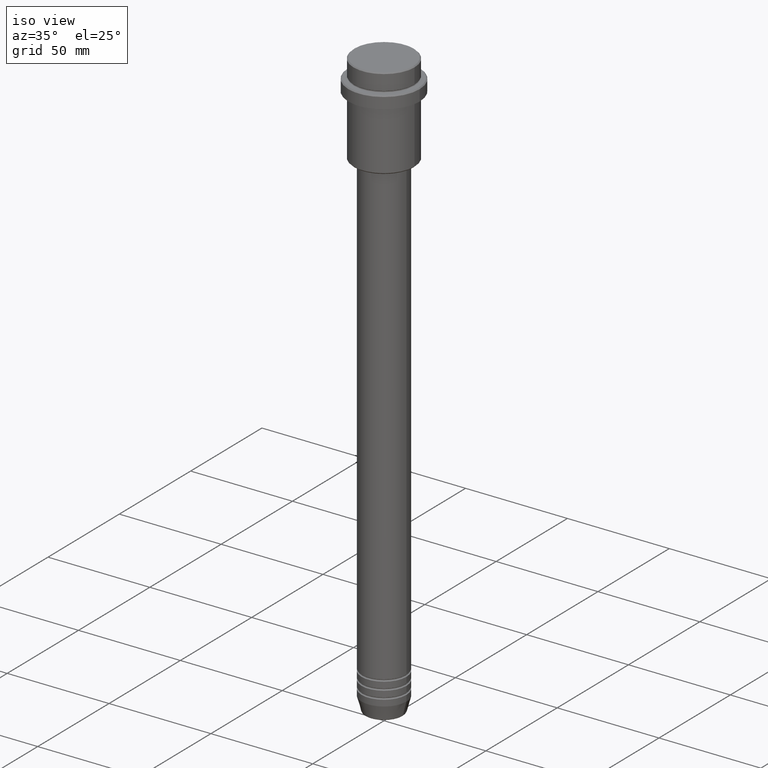
[diagram: clean part render]
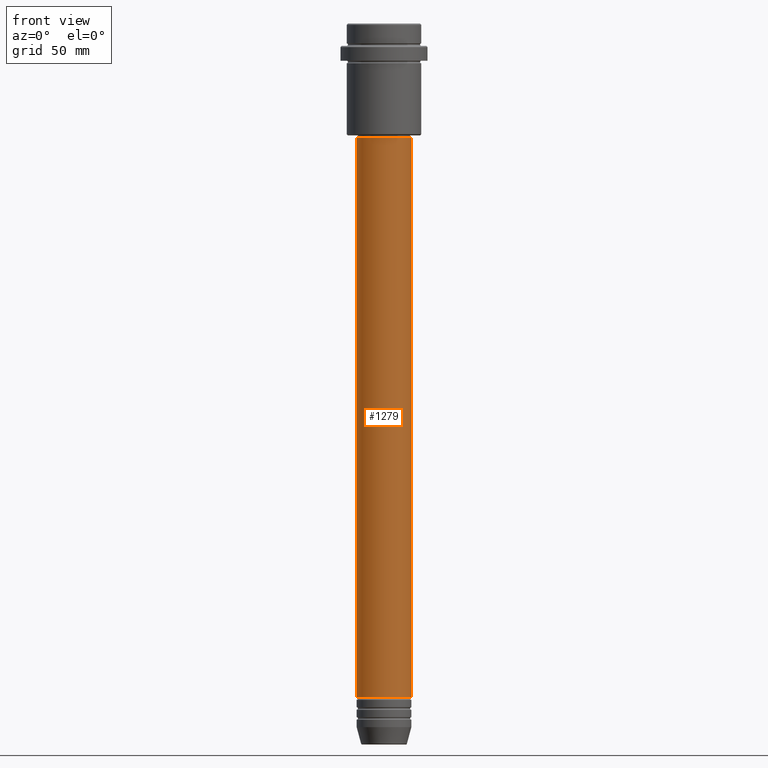
[diagram: tour spotlight — one face highlighted and labeled with its STEP entity id]
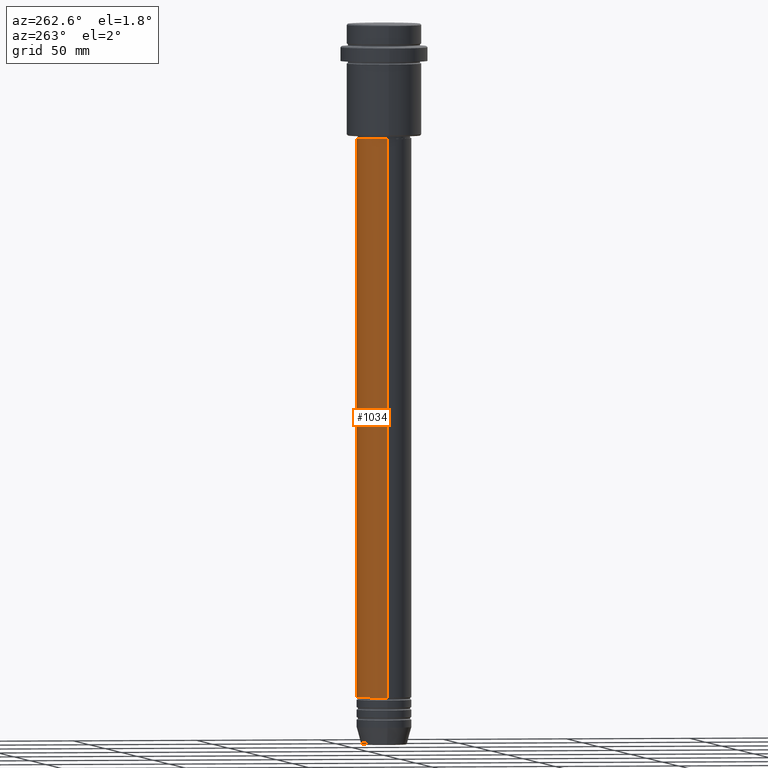
[diagram: tour spotlight — one face highlighted and labeled with its STEP entity id]
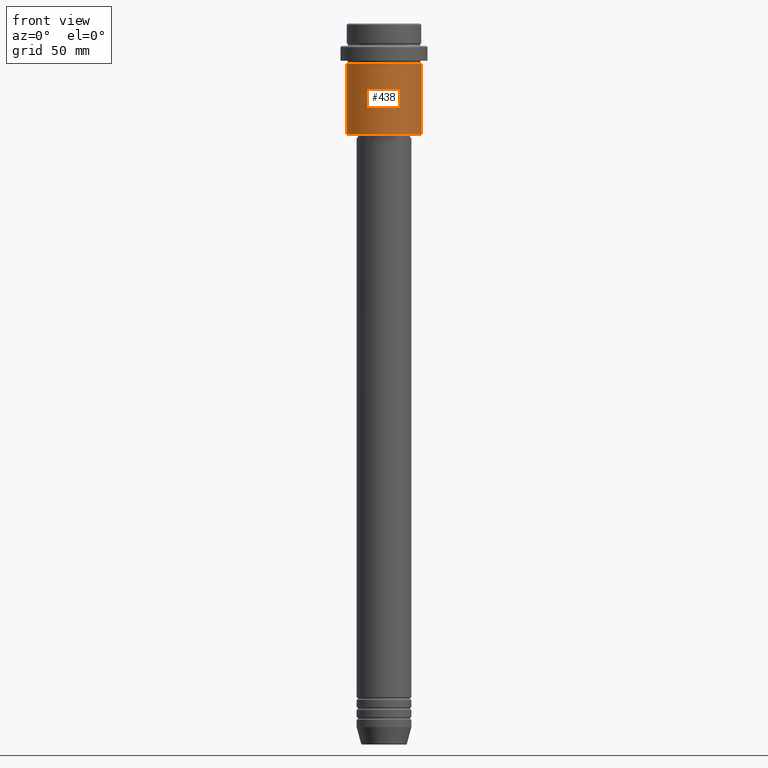
[diagram: tour spotlight — one face highlighted and labeled with its STEP entity id]
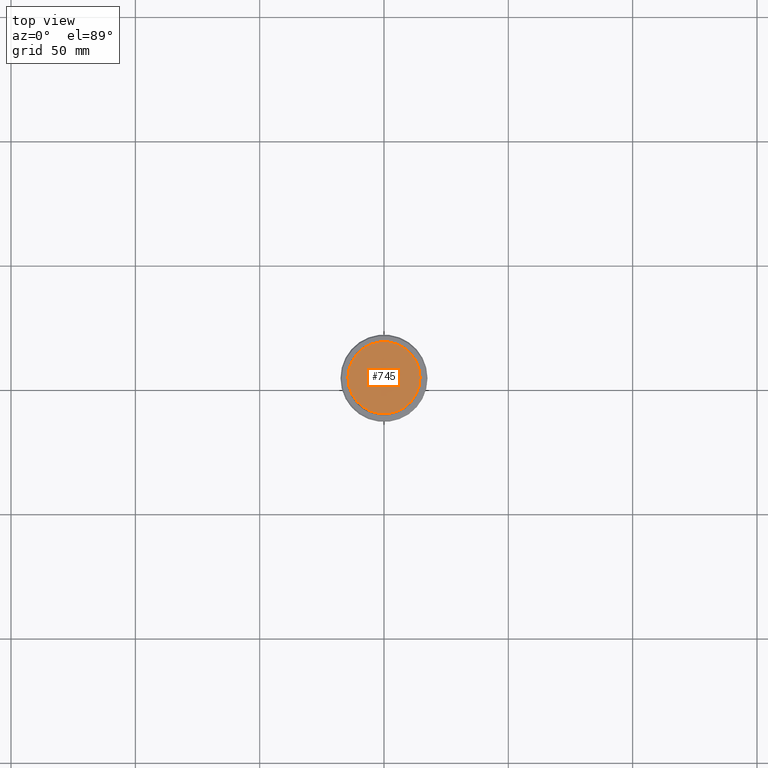
[diagram: tour spotlight — one face highlighted and labeled with its STEP entity id]
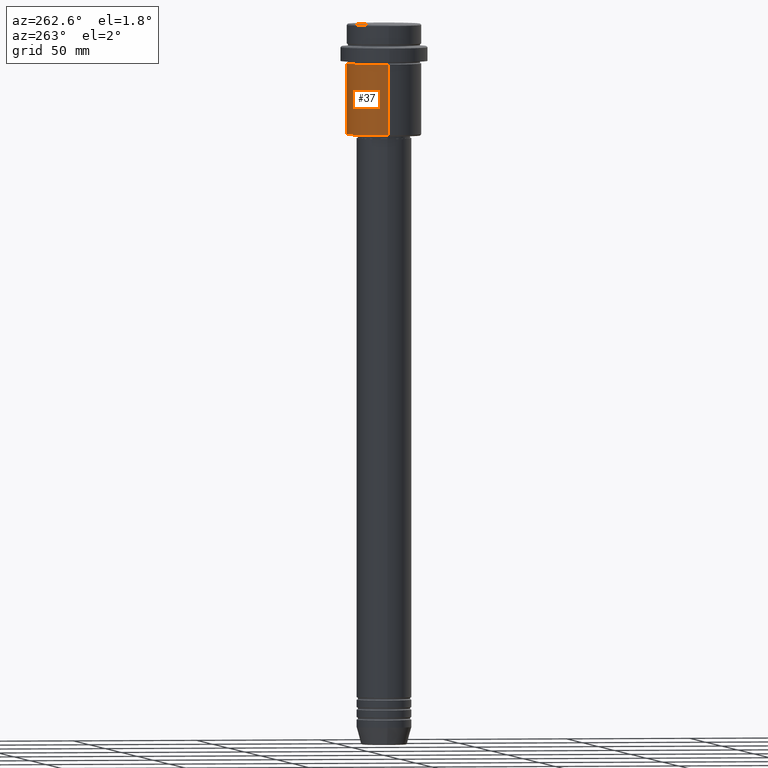
[diagram: tour spotlight — one face highlighted and labeled with its STEP entity id]
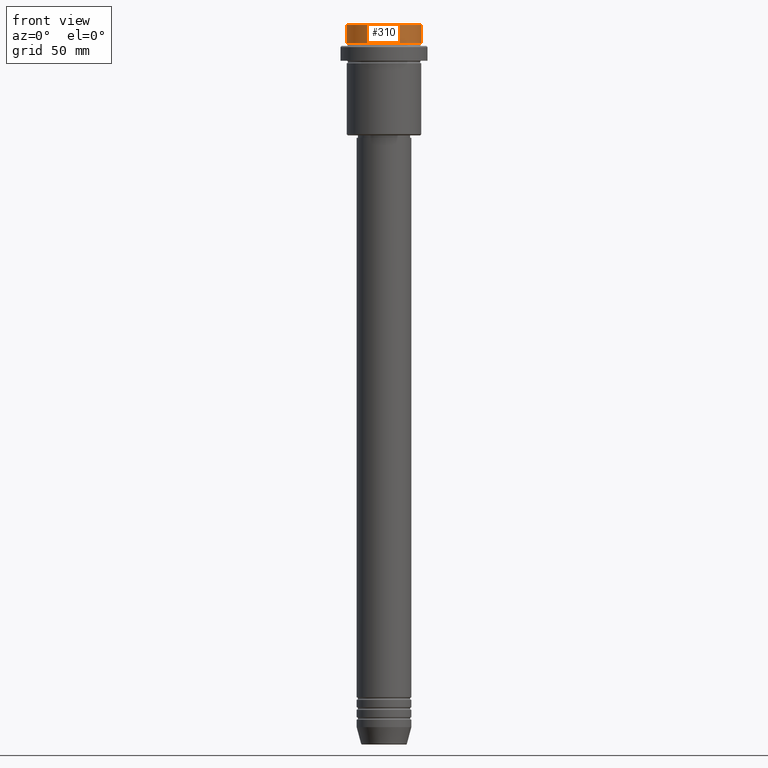
[diagram: tour spotlight — one face highlighted and labeled with its STEP entity id]
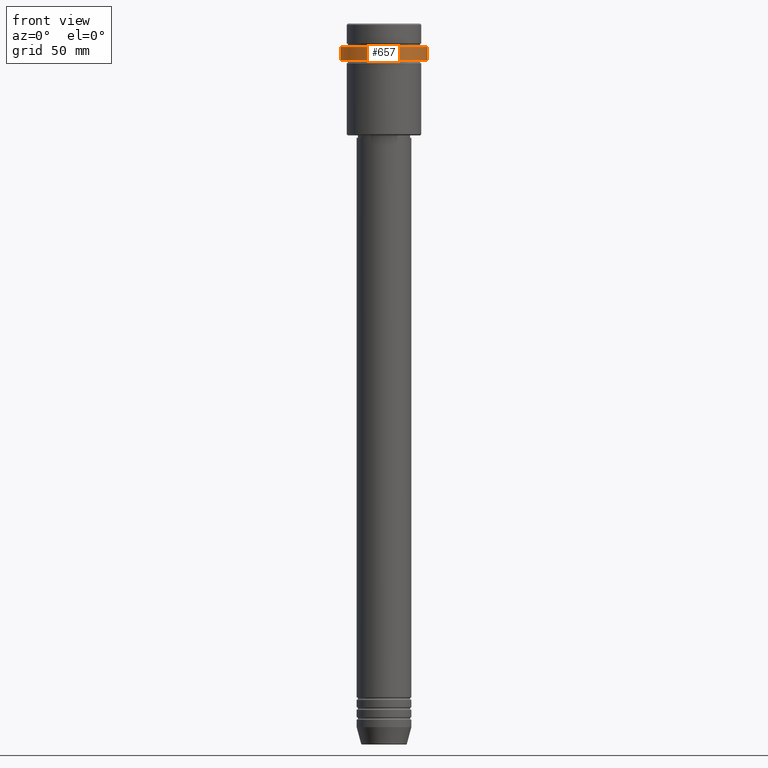
[diagram: tour spotlight — one face highlighted and labeled with its STEP entity id]
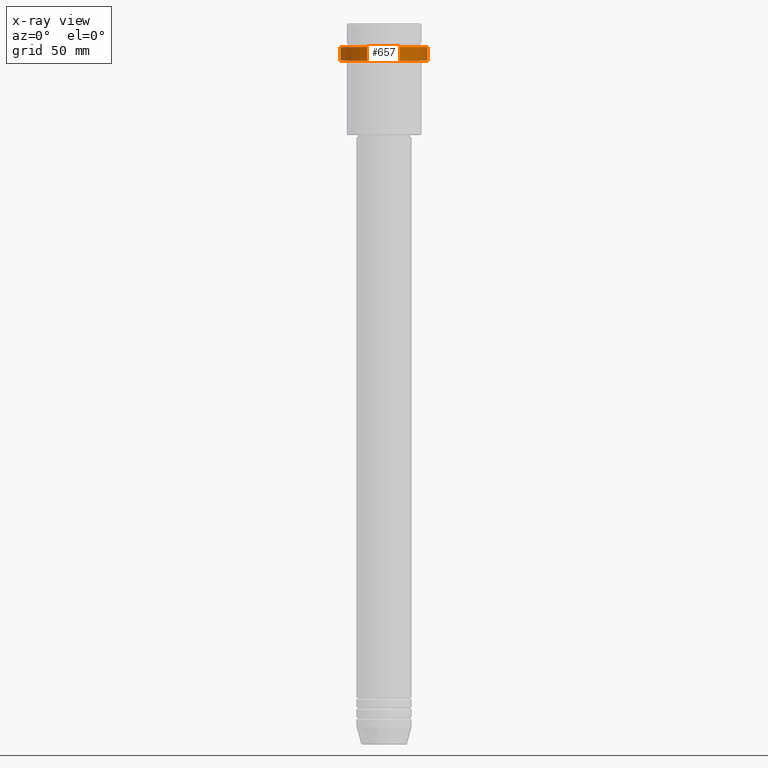
[diagram: x-ray of the same camera — body ghosted, this tour face saturated]
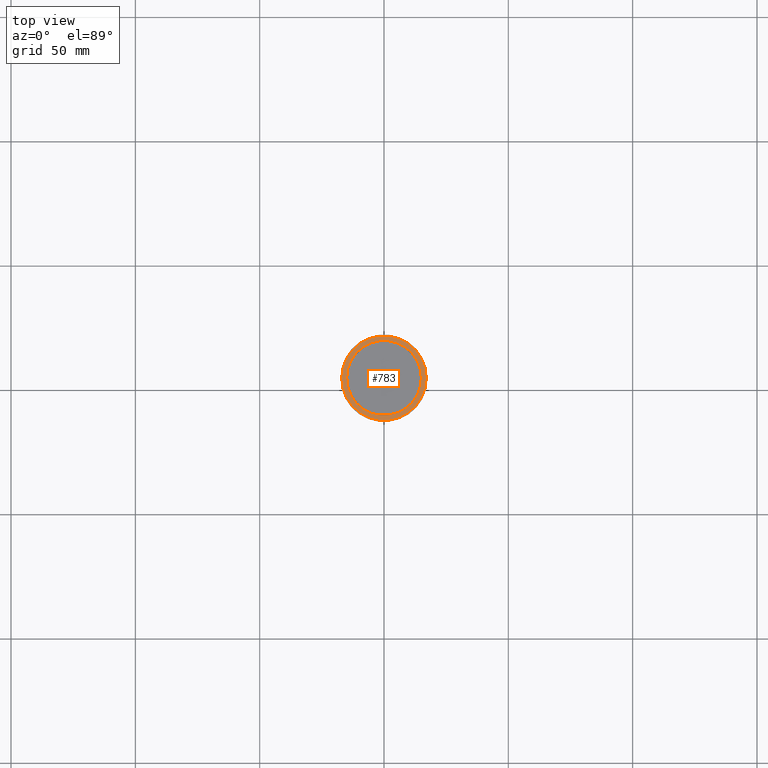
[diagram: tour spotlight — one face highlighted and labeled with its STEP entity id]
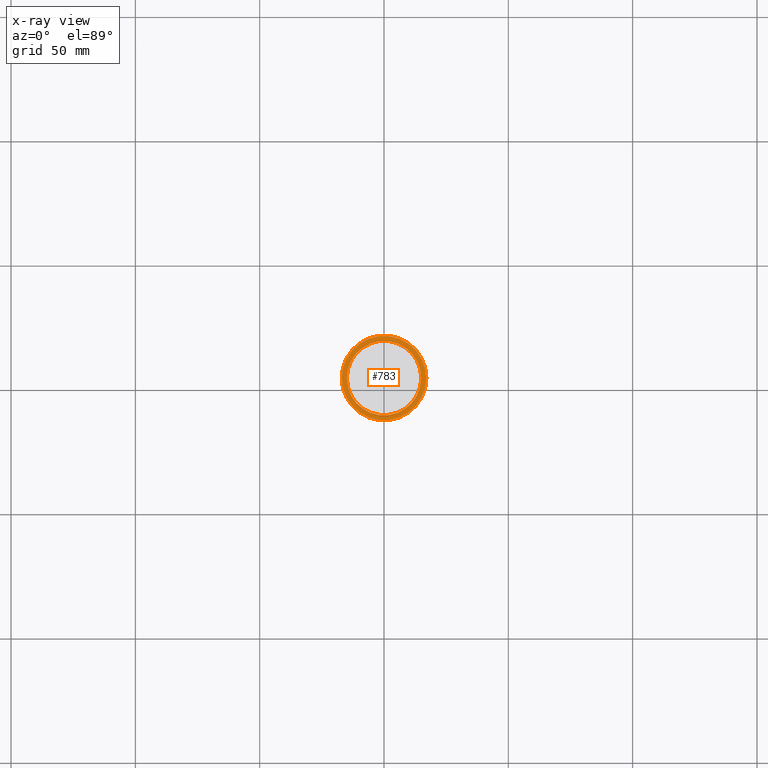
[diagram: x-ray of the same camera — body ghosted, this tour face saturated]
A machine part: a face-by-face anatomy tour. The part has 52 B-rep faces; the first image is the clean iso view, then the 8 largest visible faces are spotlighted one at a time (largest first), each with its STEP entity span.

Face 1 — front view, entity #1279. In plain terms, the highlighted cylindrical surface (edge-blend (fillet) strip) has radius 11 mm, axis along (-0, -0, 1).
Definition (entity closure, byte-faithful):
#56 = VERTEX_POINT ( 'NONE', #744 ) ;
#80 = VERTEX_POINT ( 'NONE', #637 ) ;
#89 = LINE ( 'NONE', #98, #455 ) ;
#98 = CARTESIAN_POINT ( 'NONE',  ( 11.00000000000000000, 0.000000000000000000, 0.000000000000000000 ) ) ;
#121 = EDGE_CURVE ( 'NONE', #56, #80, #741, .T. ) ;
#183 = DIRECTION ( 'NONE',  ( -0.000000000000000000, -0.000000000000000000, 1.000000000000000000 ) ) ;
#214 = VECTOR ( 'NONE', #665, 1000.000000000000000 ) ;
#232 = ORIENTED_EDGE ( 'NONE', *, *, #419, .T. ) ;
#284 = CARTESIAN_POINT ( 'NONE',  ( 0.000000000000000000, 0.000000000000000000, -270.9999999999998863 ) ) ;
#353 = DIRECTION ( 'NONE',  ( -0.000000000000000000, -0.000000000000000000, 1.000000000000000000 ) ) ;
#419 = EDGE_CURVE ( 'NONE', #785, #1110, #1020, .T. ) ;
#453 = CARTESIAN_POINT ( 'NONE',  ( 11.00000000000000000, 0.000000000000000000, -270.9999999999998863 ) ) ;
#455 = VECTOR ( 'NONE', #183, 1000.000000000000000 ) ;
#505 = DIRECTION ( 'NONE',  ( 1.000000000000000000, 0.000000000000000000, 0.000000000000000000 ) ) ;
#544 = ORIENTED_EDGE ( 'NONE', *, *, #1022, .F. ) ;
#554 = CARTESIAN_POINT ( 'NONE',  ( 0.000000000000000000, 0.000000000000000000, -46.00000000000009948 ) ) ;
#607 = DIRECTION ( 'NONE',  ( -0.000000000000000000, -0.000000000000000000, 1.000000000000000000 ) ) ;
#637 = CARTESIAN_POINT ( 'NONE',  ( 10.99999999999999822, 0.000000000000000000, -46.00000000000009948 ) ) ;
#665 = DIRECTION ( 'NONE',  ( -0.000000000000000000, -0.000000000000000000, 1.000000000000000000 ) ) ;
#729 = DIRECTION ( 'NONE',  ( -0.000000000000000000, -0.000000000000000000, 1.000000000000000000 ) ) ;
#741 = CIRCLE ( 'NONE', #1275, 10.99999999999999822 ) ;
#744 = CARTESIAN_POINT ( 'NONE',  ( -10.99999999999999822, 1.347111479062088207E-15, -46.00000000000009948 ) ) ;
#749 = CARTESIAN_POINT ( 'NONE',  ( 0.000000000000000000, 0.000000000000000000, 0.000000000000000000 ) ) ;
#773 = CARTESIAN_POINT ( 'NONE',  ( -11.00000000000000000, 1.347111479062088405E-15, 0.000000000000000000 ) ) ;
#785 = VERTEX_POINT ( 'NONE', #1231 ) ;
#827 = DIRECTION ( 'NONE',  ( 1.000000000000000000, 0.000000000000000000, 0.000000000000000000 ) ) ;
#837 = CYLINDRICAL_SURFACE ( 'NONE', #1340, 11.00000000000000000 ) ;
#949 = ORIENTED_EDGE ( 'NONE', *, *, #996, .T. ) ;
#957 = FACE_OUTER_BOUND ( 'NONE', #1393, .T. ) ;
#996 = EDGE_CURVE ( 'NONE', #1110, #80, #89, .T. ) ;
#1020 = CIRCLE ( 'NONE', #1146, 11.00000000000000000 ) ;
#1022 = EDGE_CURVE ( 'NONE', #785, #56, #1111, .T. ) ;
#1110 = VERTEX_POINT ( 'NONE', #453 ) ;
#1111 = LINE ( 'NONE', #773, #214 ) ;
#1146 = AXIS2_PLACEMENT_3D ( 'NONE', #284, #729, #505 ) ;
#1231 = CARTESIAN_POINT ( 'NONE',  ( -11.00000000000000000, 1.347111479062088405E-15, -270.9999999999998863 ) ) ;
#1261 = ORIENTED_EDGE ( 'NONE', *, *, #121, .F. ) ;
#1275 = AXIS2_PLACEMENT_3D ( 'NONE', #554, #353, #1406 ) ;
#1279 = ADVANCED_FACE ( 'NONE', ( #957 ), #837, .T. ) ;
#1340 = AXIS2_PLACEMENT_3D ( 'NONE', #749, #607, #827 ) ;
#1393 = EDGE_LOOP ( 'NONE', ( #544, #232, #949, #1261 ) ) ;
#1406 = DIRECTION ( 'NONE',  ( 1.000000000000000000, 0.000000000000000000, 0.000000000000000000 ) ) ;

Face 2 — auxiliary view, entity #1034. In plain terms, the highlighted cylindrical surface (edge-blend (fillet) strip) has radius 11 mm, axis along (-0, -0, 1).
Definition (entity closure, byte-faithful):
#10 = CARTESIAN_POINT ( 'NONE',  ( 0.000000000000000000, 0.000000000000000000, 0.000000000000000000 ) ) ;
#13 = EDGE_CURVE ( 'NONE', #1110, #785, #808, .T. ) ;
#56 = VERTEX_POINT ( 'NONE', #744 ) ;
#70 = CIRCLE ( 'NONE', #100, 10.99999999999999822 ) ;
#80 = VERTEX_POINT ( 'NONE', #637 ) ;
#89 = LINE ( 'NONE', #98, #455 ) ;
#98 = CARTESIAN_POINT ( 'NONE',  ( 11.00000000000000000, 0.000000000000000000, 0.000000000000000000 ) ) ;
#100 = AXIS2_PLACEMENT_3D ( 'NONE', #342, #1016, #223 ) ;
#113 = ORIENTED_EDGE ( 'NONE', *, *, #1055, .F. ) ;
#183 = DIRECTION ( 'NONE',  ( -0.000000000000000000, -0.000000000000000000, 1.000000000000000000 ) ) ;
#214 = VECTOR ( 'NONE', #665, 1000.000000000000000 ) ;
#223 = DIRECTION ( 'NONE',  ( 1.000000000000000000, 0.000000000000000000, 0.000000000000000000 ) ) ;
#231 = DIRECTION ( 'NONE',  ( 1.000000000000000000, 0.000000000000000000, 0.000000000000000000 ) ) ;
#266 = ORIENTED_EDGE ( 'NONE', *, *, #1022, .T. ) ;
#342 = CARTESIAN_POINT ( 'NONE',  ( 0.000000000000000000, 0.000000000000000000, -46.00000000000009948 ) ) ;
#453 = CARTESIAN_POINT ( 'NONE',  ( 11.00000000000000000, 0.000000000000000000, -270.9999999999998863 ) ) ;
#455 = VECTOR ( 'NONE', #183, 1000.000000000000000 ) ;
#637 = CARTESIAN_POINT ( 'NONE',  ( 10.99999999999999822, 0.000000000000000000, -46.00000000000009948 ) ) ;
#665 = DIRECTION ( 'NONE',  ( -0.000000000000000000, -0.000000000000000000, 1.000000000000000000 ) ) ;
#744 = CARTESIAN_POINT ( 'NONE',  ( -10.99999999999999822, 1.347111479062088207E-15, -46.00000000000009948 ) ) ;
#773 = CARTESIAN_POINT ( 'NONE',  ( -11.00000000000000000, 1.347111479062088405E-15, 0.000000000000000000 ) ) ;
#785 = VERTEX_POINT ( 'NONE', #1231 ) ;
#808 = CIRCLE ( 'NONE', #1141, 11.00000000000000000 ) ;
#867 = ORIENTED_EDGE ( 'NONE', *, *, #13, .T. ) ;
#978 = DIRECTION ( 'NONE',  ( 1.000000000000000000, 0.000000000000000000, 0.000000000000000000 ) ) ;
#993 = ORIENTED_EDGE ( 'NONE', *, *, #996, .F. ) ;
#996 = EDGE_CURVE ( 'NONE', #1110, #80, #89, .T. ) ;
#1016 = DIRECTION ( 'NONE',  ( -0.000000000000000000, -0.000000000000000000, 1.000000000000000000 ) ) ;
#1022 = EDGE_CURVE ( 'NONE', #785, #56, #1111, .T. ) ;
#1034 = ADVANCED_FACE ( 'NONE', ( #1293 ), #1193, .T. ) ;
#1055 = EDGE_CURVE ( 'NONE', #80, #56, #70, .T. ) ;
#1110 = VERTEX_POINT ( 'NONE', #453 ) ;
#1111 = LINE ( 'NONE', #773, #214 ) ;
#1141 = AXIS2_PLACEMENT_3D ( 'NONE', #1278, #1414, #978 ) ;
#1193 = CYLINDRICAL_SURFACE ( 'NONE', #1363, 11.00000000000000000 ) ;
#1231 = CARTESIAN_POINT ( 'NONE',  ( -11.00000000000000000, 1.347111479062088405E-15, -270.9999999999998863 ) ) ;
#1278 = CARTESIAN_POINT ( 'NONE',  ( 0.000000000000000000, 0.000000000000000000, -270.9999999999998863 ) ) ;
#1293 = FACE_OUTER_BOUND ( 'NONE', #1417, .T. ) ;
#1317 = DIRECTION ( 'NONE',  ( -0.000000000000000000, -0.000000000000000000, 1.000000000000000000 ) ) ;
#1363 = AXIS2_PLACEMENT_3D ( 'NONE', #10, #1317, #231 ) ;
#1414 = DIRECTION ( 'NONE',  ( -0.000000000000000000, -0.000000000000000000, 1.000000000000000000 ) ) ;
#1417 = EDGE_LOOP ( 'NONE', ( #867, #266, #113, #993 ) ) ;

Face 3 — front view, entity #438. In plain terms, the highlighted cylindrical surface (partial cylindrical patch) has radius 15 mm, axis along (-0, -0, 1).
Definition (entity closure, byte-faithful):
#44 = VECTOR ( 'NONE', #752, 1000.000000000000000 ) ;
#61 = EDGE_CURVE ( 'NONE', #1077, #864, #1169, .T. ) ;
#68 = CIRCLE ( 'NONE', #321, 15.00000000000000178 ) ;
#135 = VERTEX_POINT ( 'NONE', #426 ) ;
#241 = CIRCLE ( 'NONE', #1244, 15.00000000000000000 ) ;
#283 = ORIENTED_EDGE ( 'NONE', *, *, #921, .F. ) ;
#306 = CARTESIAN_POINT ( 'NONE',  ( 15.00000000000000000, 0.000000000000000000, 0.000000000000000000 ) ) ;
#315 = CARTESIAN_POINT ( 'NONE',  ( 0.000000000000000000, 0.000000000000000000, -44.50000000000001421 ) ) ;
#321 = AXIS2_PLACEMENT_3D ( 'NONE', #490, #963, #1157 ) ;
#343 = VERTEX_POINT ( 'NONE', #397 ) ;
#387 = AXIS2_PLACEMENT_3D ( 'NONE', #493, #623, #819 ) ;
#397 = CARTESIAN_POINT ( 'NONE',  ( -15.00000000000000355, 1.836970198721029983E-15, -16.00000000000000000 ) ) ;
#426 = CARTESIAN_POINT ( 'NONE',  ( -15.00000000000000000, 1.836970198721029589E-15, -44.50000000000001421 ) ) ;
#438 = ADVANCED_FACE ( 'NONE', ( #947 ), #1047, .T. ) ;
#490 = CARTESIAN_POINT ( 'NONE',  ( 0.000000000000000000, 0.000000000000000000, -16.00000000000000000 ) ) ;
#493 = CARTESIAN_POINT ( 'NONE',  ( 0.000000000000000000, 0.000000000000000000, 0.000000000000000000 ) ) ;
#521 = ORIENTED_EDGE ( 'NONE', *, *, #61, .T. ) ;
#534 = LINE ( 'NONE', #946, #977 ) ;
#623 = DIRECTION ( 'NONE',  ( -0.000000000000000000, -0.000000000000000000, 1.000000000000000000 ) ) ;
#656 = ORIENTED_EDGE ( 'NONE', *, *, #717, .F. ) ;
#674 = DIRECTION ( 'NONE',  ( -0.000000000000000000, -0.000000000000000000, 1.000000000000000000 ) ) ;
#696 = DIRECTION ( 'NONE',  ( -0.000000000000000000, -0.000000000000000000, 1.000000000000000000 ) ) ;
#717 = EDGE_CURVE ( 'NONE', #135, #343, #534, .T. ) ;
#752 = DIRECTION ( 'NONE',  ( -0.000000000000000000, -0.000000000000000000, 1.000000000000000000 ) ) ;
#819 = DIRECTION ( 'NONE',  ( 1.000000000000000000, 0.000000000000000000, 0.000000000000000000 ) ) ;
#864 = VERTEX_POINT ( 'NONE', #1257 ) ;
#921 = EDGE_CURVE ( 'NONE', #343, #864, #68, .T. ) ;
#946 = CARTESIAN_POINT ( 'NONE',  ( -15.00000000000000000, 1.836970198721029589E-15, 0.000000000000000000 ) ) ;
#947 = FACE_OUTER_BOUND ( 'NONE', #1101, .T. ) ;
#963 = DIRECTION ( 'NONE',  ( -0.000000000000000000, -0.000000000000000000, 1.000000000000000000 ) ) ;
#977 = VECTOR ( 'NONE', #696, 1000.000000000000000 ) ;
#985 = ORIENTED_EDGE ( 'NONE', *, *, #1124, .T. ) ;
#1012 = DIRECTION ( 'NONE',  ( -1.000000000000000000, 0.000000000000000000, 0.000000000000000000 ) ) ;
#1047 = CYLINDRICAL_SURFACE ( 'NONE', #387, 15.00000000000000000 ) ;
#1077 = VERTEX_POINT ( 'NONE', #1306 ) ;
#1101 = EDGE_LOOP ( 'NONE', ( #656, #985, #521, #283 ) ) ;
#1124 = EDGE_CURVE ( 'NONE', #135, #1077, #241, .T. ) ;
#1157 = DIRECTION ( 'NONE',  ( 1.000000000000000000, 0.000000000000000000, 0.000000000000000000 ) ) ;
#1169 = LINE ( 'NONE', #306, #44 ) ;
#1244 = AXIS2_PLACEMENT_3D ( 'NONE', #315, #674, #1012 ) ;
#1257 = CARTESIAN_POINT ( 'NONE',  ( 15.00000000000000178, 0.000000000000000000, -16.00000000000000000 ) ) ;
#1306 = CARTESIAN_POINT ( 'NONE',  ( 15.00000000000000000, 0.000000000000000000, -44.50000000000001421 ) ) ;

Face 4 — top view, entity #745. In plain terms, the highlighted planar face has unit normal (0, -0, 1).
Definition (entity closure, byte-faithful):
#146 = CIRCLE ( 'NONE', #1397, 14.49999999999995559 ) ;
#151 = DIRECTION ( 'NONE',  ( 0.000000000000000000, -0.000000000000000000, 1.000000000000000000 ) ) ;
#158 = DIRECTION ( 'NONE',  ( 1.000000000000000000, 0.000000000000000000, 0.000000000000000000 ) ) ;
#172 = DIRECTION ( 'NONE',  ( -0.000000000000000000, -0.000000000000000000, 1.000000000000000000 ) ) ;
#206 = DIRECTION ( 'NONE',  ( 1.000000000000000000, 0.000000000000000000, 0.000000000000000000 ) ) ;
#228 = EDGE_CURVE ( 'NONE', #235, #903, #370, .T. ) ;
#235 = VERTEX_POINT ( 'NONE', #1086 ) ;
#269 = PLANE ( 'NONE',  #885 ) ;
#370 = CIRCLE ( 'NONE', #913, 14.49999999999995559 ) ;
#441 = ORIENTED_EDGE ( 'NONE', *, *, #566, .T. ) ;
#566 = EDGE_CURVE ( 'NONE', #903, #235, #146, .T. ) ;
#745 = ADVANCED_FACE ( 'NONE', ( #1129 ), #269, .T. ) ;
#781 = CARTESIAN_POINT ( 'NONE',  ( 0.000000000000000000, 0.000000000000000000, 0.000000000000000000 ) ) ;
#885 = AXIS2_PLACEMENT_3D ( 'NONE', #1358, #151, #925 ) ;
#903 = VERTEX_POINT ( 'NONE', #1153 ) ;
#913 = AXIS2_PLACEMENT_3D ( 'NONE', #781, #965, #206 ) ;
#925 = DIRECTION ( 'NONE',  ( 1.000000000000000000, 0.000000000000000000, 0.000000000000000000 ) ) ;
#965 = DIRECTION ( 'NONE',  ( -0.000000000000000000, -0.000000000000000000, 1.000000000000000000 ) ) ;
#1027 = ORIENTED_EDGE ( 'NONE', *, *, #228, .T. ) ;
#1078 = EDGE_LOOP ( 'NONE', ( #441, #1027 ) ) ;
#1086 = CARTESIAN_POINT ( 'NONE',  ( 14.49999999999995559, 1.806354028742343041E-15, 0.000000000000000000 ) ) ;
#1129 = FACE_OUTER_BOUND ( 'NONE', #1078, .T. ) ;
#1153 = CARTESIAN_POINT ( 'NONE',  ( -14.49999999999995559, 0.000000000000000000, 0.000000000000000000 ) ) ;
#1228 = CARTESIAN_POINT ( 'NONE',  ( 0.000000000000000000, 0.000000000000000000, 0.000000000000000000 ) ) ;
#1358 = CARTESIAN_POINT ( 'NONE',  ( 0.000000000000000000, 0.000000000000000000, 0.000000000000000000 ) ) ;
#1397 = AXIS2_PLACEMENT_3D ( 'NONE', #1228, #172, #158 ) ;

Face 5 — auxiliary view, entity #37. In plain terms, the highlighted cylindrical surface (partial cylindrical patch) has radius 15 mm, axis along (-0, -0, 1).
Definition (entity closure, byte-faithful):
#37 = ADVANCED_FACE ( 'NONE', ( #1399 ), #430, .T. ) ;
#44 = VECTOR ( 'NONE', #752, 1000.000000000000000 ) ;
#61 = EDGE_CURVE ( 'NONE', #1077, #864, #1169, .T. ) ;
#76 = ORIENTED_EDGE ( 'NONE', *, *, #61, .F. ) ;
#103 = DIRECTION ( 'NONE',  ( 1.000000000000000000, 0.000000000000000000, 0.000000000000000000 ) ) ;
#124 = AXIS2_PLACEMENT_3D ( 'NONE', #125, #789, #226 ) ;
#125 = CARTESIAN_POINT ( 'NONE',  ( 0.000000000000000000, 0.000000000000000000, -16.00000000000000000 ) ) ;
#135 = VERTEX_POINT ( 'NONE', #426 ) ;
#173 = EDGE_CURVE ( 'NONE', #864, #343, #497, .T. ) ;
#213 = ORIENTED_EDGE ( 'NONE', *, *, #173, .F. ) ;
#226 = DIRECTION ( 'NONE',  ( 1.000000000000000000, 0.000000000000000000, 0.000000000000000000 ) ) ;
#306 = CARTESIAN_POINT ( 'NONE',  ( 15.00000000000000000, 0.000000000000000000, 0.000000000000000000 ) ) ;
#313 = DIRECTION ( 'NONE',  ( -0.000000000000000000, -0.000000000000000000, 1.000000000000000000 ) ) ;
#343 = VERTEX_POINT ( 'NONE', #397 ) ;
#348 = CIRCLE ( 'NONE', #1239, 15.00000000000000000 ) ;
#397 = CARTESIAN_POINT ( 'NONE',  ( -15.00000000000000355, 1.836970198721029983E-15, -16.00000000000000000 ) ) ;
#426 = CARTESIAN_POINT ( 'NONE',  ( -15.00000000000000000, 1.836970198721029589E-15, -44.50000000000001421 ) ) ;
#430 = CYLINDRICAL_SURFACE ( 'NONE', #1297, 15.00000000000000000 ) ;
#497 = CIRCLE ( 'NONE', #124, 15.00000000000000178 ) ;
#534 = LINE ( 'NONE', #946, #977 ) ;
#688 = DIRECTION ( 'NONE',  ( -0.000000000000000000, -0.000000000000000000, 1.000000000000000000 ) ) ;
#696 = DIRECTION ( 'NONE',  ( -0.000000000000000000, -0.000000000000000000, 1.000000000000000000 ) ) ;
#717 = EDGE_CURVE ( 'NONE', #135, #343, #534, .T. ) ;
#752 = DIRECTION ( 'NONE',  ( -0.000000000000000000, -0.000000000000000000, 1.000000000000000000 ) ) ;
#755 = EDGE_CURVE ( 'NONE', #1077, #135, #348, .T. ) ;
#789 = DIRECTION ( 'NONE',  ( -0.000000000000000000, -0.000000000000000000, 1.000000000000000000 ) ) ;
#864 = VERTEX_POINT ( 'NONE', #1257 ) ;
#890 = CARTESIAN_POINT ( 'NONE',  ( 0.000000000000000000, 0.000000000000000000, 0.000000000000000000 ) ) ;
#946 = CARTESIAN_POINT ( 'NONE',  ( -15.00000000000000000, 1.836970198721029589E-15, 0.000000000000000000 ) ) ;
#952 = ORIENTED_EDGE ( 'NONE', *, *, #717, .T. ) ;
#960 = ORIENTED_EDGE ( 'NONE', *, *, #755, .T. ) ;
#977 = VECTOR ( 'NONE', #696, 1000.000000000000000 ) ;
#1025 = CARTESIAN_POINT ( 'NONE',  ( 0.000000000000000000, 0.000000000000000000, -44.50000000000001421 ) ) ;
#1077 = VERTEX_POINT ( 'NONE', #1306 ) ;
#1169 = LINE ( 'NONE', #306, #44 ) ;
#1239 = AXIS2_PLACEMENT_3D ( 'NONE', #1025, #688, #1331 ) ;
#1257 = CARTESIAN_POINT ( 'NONE',  ( 15.00000000000000178, 0.000000000000000000, -16.00000000000000000 ) ) ;
#1267 = EDGE_LOOP ( 'NONE', ( #960, #952, #213, #76 ) ) ;
#1297 = AXIS2_PLACEMENT_3D ( 'NONE', #890, #313, #103 ) ;
#1306 = CARTESIAN_POINT ( 'NONE',  ( 15.00000000000000000, 0.000000000000000000, -44.50000000000001421 ) ) ;
#1331 = DIRECTION ( 'NONE',  ( -1.000000000000000000, 0.000000000000000000, 0.000000000000000000 ) ) ;
#1399 = FACE_OUTER_BOUND ( 'NONE', #1267, .T. ) ;

Face 6 — front view, entity #310. In plain terms, the highlighted cylindrical surface (partial cylindrical patch) has radius 15 mm, axis along (-0, -0, 1).
Definition (entity closure, byte-faithful):
#23 = VECTOR ( 'NONE', #756, 1000.000000000000000 ) ;
#39 = FACE_OUTER_BOUND ( 'NONE', #721, .T. ) ;
#40 = DIRECTION ( 'NONE',  ( 0.000000000000000000, 0.000000000000000000, -1.000000000000000000 ) ) ;
#143 = CIRCLE ( 'NONE', #326, 15.00000000000000000 ) ;
#168 = ORIENTED_EDGE ( 'NONE', *, *, #863, .F. ) ;
#188 = CARTESIAN_POINT ( 'NONE',  ( -15.00000000000000000, 1.836970198721029589E-15, -7.999999999999998224 ) ) ;
#225 = CARTESIAN_POINT ( 'NONE',  ( 15.00000000000000000, 0.000000000000000000, 0.000000000000000000 ) ) ;
#252 = DIRECTION ( 'NONE',  ( -0.000000000000000000, -0.000000000000000000, 1.000000000000000000 ) ) ;
#310 = ADVANCED_FACE ( 'NONE', ( #39 ), #1211, .T. ) ;
#326 = AXIS2_PLACEMENT_3D ( 'NONE', #733, #481, #962 ) ;
#390 = ORIENTED_EDGE ( 'NONE', *, *, #1339, .T. ) ;
#392 = LINE ( 'NONE', #532, #594 ) ;
#403 = CARTESIAN_POINT ( 'NONE',  ( 15.00000000000000000, 0.000000000000000000, -7.999999999999998224 ) ) ;
#478 = CARTESIAN_POINT ( 'NONE',  ( 0.000000000000000000, 0.000000000000000000, -0.5000000000000386358 ) ) ;
#481 = DIRECTION ( 'NONE',  ( -0.000000000000000000, -0.000000000000000000, 1.000000000000000000 ) ) ;
#488 = ORIENTED_EDGE ( 'NONE', *, *, #632, .T. ) ;
#520 = CARTESIAN_POINT ( 'NONE',  ( 15.00000000000000000, 0.000000000000000000, -0.5000000000000386358 ) ) ;
#532 = CARTESIAN_POINT ( 'NONE',  ( -15.00000000000000000, 1.836970198721029589E-15, 0.000000000000000000 ) ) ;
#572 = CARTESIAN_POINT ( 'NONE',  ( 0.000000000000000000, 0.000000000000000000, 0.000000000000000000 ) ) ;
#594 = VECTOR ( 'NONE', #1051, 1000.000000000000000 ) ;
#625 = LINE ( 'NONE', #225, #23 ) ;
#632 = EDGE_CURVE ( 'NONE', #1380, #894, #625, .T. ) ;
#721 = EDGE_LOOP ( 'NONE', ( #168, #390, #488, #878 ) ) ;
#732 = EDGE_CURVE ( 'NONE', #894, #1242, #765, .T. ) ;
#733 = CARTESIAN_POINT ( 'NONE',  ( 0.000000000000000000, 0.000000000000000000, -7.999999999999998224 ) ) ;
#756 = DIRECTION ( 'NONE',  ( -0.000000000000000000, -0.000000000000000000, 1.000000000000000000 ) ) ;
#765 = CIRCLE ( 'NONE', #855, 15.00000000000000000 ) ;
#800 = DIRECTION ( 'NONE',  ( 1.000000000000000000, 0.000000000000000000, 0.000000000000000000 ) ) ;
#810 = AXIS2_PLACEMENT_3D ( 'NONE', #572, #252, #800 ) ;
#817 = DIRECTION ( 'NONE',  ( 1.000000000000000000, 0.000000000000000000, 0.000000000000000000 ) ) ;
#855 = AXIS2_PLACEMENT_3D ( 'NONE', #478, #40, #817 ) ;
#863 = EDGE_CURVE ( 'NONE', #1310, #1242, #392, .T. ) ;
#878 = ORIENTED_EDGE ( 'NONE', *, *, #732, .T. ) ;
#894 = VERTEX_POINT ( 'NONE', #520 ) ;
#962 = DIRECTION ( 'NONE',  ( 1.000000000000000000, 0.000000000000000000, 0.000000000000000000 ) ) ;
#1051 = DIRECTION ( 'NONE',  ( -0.000000000000000000, -0.000000000000000000, 1.000000000000000000 ) ) ;
#1137 = CARTESIAN_POINT ( 'NONE',  ( -15.00000000000000000, 1.836970198721029589E-15, -0.5000000000000386358 ) ) ;
#1211 = CYLINDRICAL_SURFACE ( 'NONE', #810, 15.00000000000000000 ) ;
#1242 = VERTEX_POINT ( 'NONE', #1137 ) ;
#1310 = VERTEX_POINT ( 'NONE', #188 ) ;
#1339 = EDGE_CURVE ( 'NONE', #1310, #1380, #143, .T. ) ;
#1380 = VERTEX_POINT ( 'NONE', #403 ) ;

Face 7 — front view, entity #657. An x-ray twin of the same camera follows (body ghosted, this face saturated) — the face is partly hidden behind the body. In plain terms, the highlighted cylindrical surface (partial cylindrical patch) has radius 17.5 mm, axis along (-0, -0, 1).
Definition (entity closure, byte-faithful):
#21 = CARTESIAN_POINT ( 'NONE',  ( 17.50000000000000000, 0.000000000000000000, -15.00000000000000000 ) ) ;
#114 = FACE_OUTER_BOUND ( 'NONE', #964, .T. ) ;
#131 = EDGE_CURVE ( 'NONE', #1011, #319, #569, .T. ) ;
#192 = EDGE_CURVE ( 'NONE', #1013, #743, #680, .T. ) ;
#209 = CARTESIAN_POINT ( 'NONE',  ( 0.000000000000000000, 0.000000000000000000, 0.000000000000000000 ) ) ;
#236 = DIRECTION ( 'NONE',  ( -0.000000000000000000, -0.000000000000000000, 1.000000000000000000 ) ) ;
#277 = CIRCLE ( 'NONE', #643, 17.50000000000000000 ) ;
#319 = VERTEX_POINT ( 'NONE', #668 ) ;
#341 = CARTESIAN_POINT ( 'NONE',  ( 17.50000000000000000, 0.000000000000000000, 0.000000000000000000 ) ) ;
#372 = EDGE_CURVE ( 'NONE', #319, #743, #412, .T. ) ;
#412 = CIRCLE ( 'NONE', #579, 17.50000000000000000 ) ;
#436 = VECTOR ( 'NONE', #1089, 1000.000000000000000 ) ;
#509 = DIRECTION ( 'NONE',  ( 1.000000000000000000, 0.000000000000000000, 0.000000000000000000 ) ) ;
#514 = DIRECTION ( 'NONE',  ( -0.000000000000000000, -0.000000000000000000, 1.000000000000000000 ) ) ;
#522 = AXIS2_PLACEMENT_3D ( 'NONE', #209, #514, #860 ) ;
#569 = LINE ( 'NONE', #341, #1144 ) ;
#579 = AXIS2_PLACEMENT_3D ( 'NONE', #1030, #813, #689 ) ;
#593 = CARTESIAN_POINT ( 'NONE',  ( -17.50000000000000000, 2.143131898507868248E-15, -9.500000000000026645 ) ) ;
#630 = ORIENTED_EDGE ( 'NONE', *, *, #372, .T. ) ;
#643 = AXIS2_PLACEMENT_3D ( 'NONE', #727, #746, #509 ) ;
#657 = ADVANCED_FACE ( 'NONE', ( #114 ), #896, .T. ) ;
#668 = CARTESIAN_POINT ( 'NONE',  ( 17.50000000000000000, 0.000000000000000000, -9.500000000000026645 ) ) ;
#680 = LINE ( 'NONE', #1282, #436 ) ;
#689 = DIRECTION ( 'NONE',  ( 1.000000000000000000, 0.000000000000000000, 0.000000000000000000 ) ) ;
#727 = CARTESIAN_POINT ( 'NONE',  ( 0.000000000000000000, 0.000000000000000000, -15.00000000000000000 ) ) ;
#743 = VERTEX_POINT ( 'NONE', #593 ) ;
#746 = DIRECTION ( 'NONE',  ( -0.000000000000000000, -0.000000000000000000, 1.000000000000000000 ) ) ;
#813 = DIRECTION ( 'NONE',  ( 0.000000000000000000, 0.000000000000000000, -1.000000000000000000 ) ) ;
#860 = DIRECTION ( 'NONE',  ( 1.000000000000000000, 0.000000000000000000, 0.000000000000000000 ) ) ;
#896 = CYLINDRICAL_SURFACE ( 'NONE', #522, 17.50000000000000000 ) ;
#906 = EDGE_CURVE ( 'NONE', #1013, #1011, #277, .T. ) ;
#964 = EDGE_LOOP ( 'NONE', ( #1402, #1271, #1329, #630 ) ) ;
#1011 = VERTEX_POINT ( 'NONE', #21 ) ;
#1013 = VERTEX_POINT ( 'NONE', #1407 ) ;
#1030 = CARTESIAN_POINT ( 'NONE',  ( 0.000000000000000000, 0.000000000000000000, -9.500000000000026645 ) ) ;
#1089 = DIRECTION ( 'NONE',  ( -0.000000000000000000, -0.000000000000000000, 1.000000000000000000 ) ) ;
#1144 = VECTOR ( 'NONE', #236, 1000.000000000000000 ) ;
#1271 = ORIENTED_EDGE ( 'NONE', *, *, #906, .T. ) ;
#1282 = CARTESIAN_POINT ( 'NONE',  ( -17.50000000000000000, 2.143131898507868248E-15, 0.000000000000000000 ) ) ;
#1329 = ORIENTED_EDGE ( 'NONE', *, *, #131, .T. ) ;
#1402 = ORIENTED_EDGE ( 'NONE', *, *, #192, .F. ) ;
#1407 = CARTESIAN_POINT ( 'NONE',  ( -17.50000000000000000, 2.143131898507868248E-15, -15.00000000000000000 ) ) ;

Face 8 — top view, entity #783. An x-ray twin of the same camera follows (body ghosted, this face saturated) — the face is partly hidden behind the body. In plain terms, the highlighted planar face has unit normal (0, -0, 1).
Definition (entity closure, byte-faithful):
#94 = ORIENTED_EDGE ( 'NONE', *, *, #763, .T. ) ;
#116 = VERTEX_POINT ( 'NONE', #901 ) ;
#240 = EDGE_CURVE ( 'NONE', #359, #648, #953, .T. ) ;
#248 = EDGE_CURVE ( 'NONE', #530, #116, #859, .T. ) ;
#272 = FACE_OUTER_BOUND ( 'NONE', #529, .T. ) ;
#308 = ORIENTED_EDGE ( 'NONE', *, *, #248, .T. ) ;
#347 = DIRECTION ( 'NONE',  ( 0.000000000000000000, 0.000000000000000000, -1.000000000000000000 ) ) ;
#359 = VERTEX_POINT ( 'NONE', #920 ) ;
#360 = PLANE ( 'NONE',  #1036 ) ;
#422 = CARTESIAN_POINT ( 'NONE',  ( 0.000000000000000000, 0.000000000000000000, -9.000000000000000000 ) ) ;
#529 = EDGE_LOOP ( 'NONE', ( #94, #308 ) ) ;
#530 = VERTEX_POINT ( 'NONE', #1236 ) ;
#562 = EDGE_LOOP ( 'NONE', ( #1071, #682 ) ) ;
#648 = VERTEX_POINT ( 'NONE', #1188 ) ;
#652 = DIRECTION ( 'NONE',  ( 1.000000000000000000, 0.000000000000000000, 0.000000000000000000 ) ) ;
#682 = ORIENTED_EDGE ( 'NONE', *, *, #240, .T. ) ;
#700 = CARTESIAN_POINT ( 'NONE',  ( 0.000000000000000000, 14.49999999999999467, -9.000000000000000000 ) ) ;
#704 = DIRECTION ( 'NONE',  ( 0.000000000000000000, 0.000000000000000000, -1.000000000000000000 ) ) ;
#705 = CARTESIAN_POINT ( 'NONE',  ( 0.000000000000000000, 0.000000000000000000, -9.000000000000000000 ) ) ;
#710 = DIRECTION ( 'NONE',  ( 1.000000000000000000, 0.000000000000000000, 0.000000000000000000 ) ) ;
#763 = EDGE_CURVE ( 'NONE', #116, #530, #807, .T. ) ;
#783 = ADVANCED_FACE ( 'NONE', ( #272, #939 ), #360, .T. ) ;
#802 = DIRECTION ( 'NONE',  ( 1.000000000000000000, 0.000000000000000000, 0.000000000000000000 ) ) ;
#807 = CIRCLE ( 'NONE', #973, 16.99999999999998579 ) ;
#859 = CIRCLE ( 'NONE', #1085, 16.99999999999998579 ) ;
#888 = AXIS2_PLACEMENT_3D ( 'NONE', #422, #704, #710 ) ;
#901 = CARTESIAN_POINT ( 'NONE',  ( -16.99999999999998579, 0.000000000000000000, -9.000000000000000000 ) ) ;
#917 = DIRECTION ( 'NONE',  ( -0.000000000000000000, -0.000000000000000000, 1.000000000000000000 ) ) ;
#920 = CARTESIAN_POINT ( 'NONE',  ( -14.99999999999999289, 1.836970198721028800E-15, -9.000000000000000000 ) ) ;
#928 = CIRCLE ( 'NONE', #1185, 14.99999999999999289 ) ;
#939 = FACE_BOUND ( 'NONE', #562, .T. ) ;
#953 = CIRCLE ( 'NONE', #888, 14.99999999999999289 ) ;
#973 = AXIS2_PLACEMENT_3D ( 'NONE', #705, #1138, #1032 ) ;
#988 = CARTESIAN_POINT ( 'NONE',  ( 0.000000000000000000, 0.000000000000000000, -9.000000000000000000 ) ) ;
#1032 = DIRECTION ( 'NONE',  ( 1.000000000000000000, 0.000000000000000000, 0.000000000000000000 ) ) ;
#1035 = EDGE_CURVE ( 'NONE', #648, #359, #928, .T. ) ;
#1036 = AXIS2_PLACEMENT_3D ( 'NONE', #700, #1045, #802 ) ;
#1045 = DIRECTION ( 'NONE',  ( 0.000000000000000000, -0.000000000000000000, 1.000000000000000000 ) ) ;
#1066 = DIRECTION ( 'NONE',  ( 1.000000000000000000, 0.000000000000000000, 0.000000000000000000 ) ) ;
#1071 = ORIENTED_EDGE ( 'NONE', *, *, #1035, .T. ) ;
#1085 = AXIS2_PLACEMENT_3D ( 'NONE', #1145, #917, #1066 ) ;
#1138 = DIRECTION ( 'NONE',  ( -0.000000000000000000, -0.000000000000000000, 1.000000000000000000 ) ) ;
#1145 = CARTESIAN_POINT ( 'NONE',  ( 0.000000000000000000, 0.000000000000000000, -9.000000000000000000 ) ) ;
#1185 = AXIS2_PLACEMENT_3D ( 'NONE', #988, #347, #652 ) ;
#1188 = CARTESIAN_POINT ( 'NONE',  ( 14.99999999999999289, 0.000000000000000000, -9.000000000000000000 ) ) ;
#1236 = CARTESIAN_POINT ( 'NONE',  ( 16.99999999999998579, 2.112515728529183278E-15, -9.000000000000000000 ) ) ;